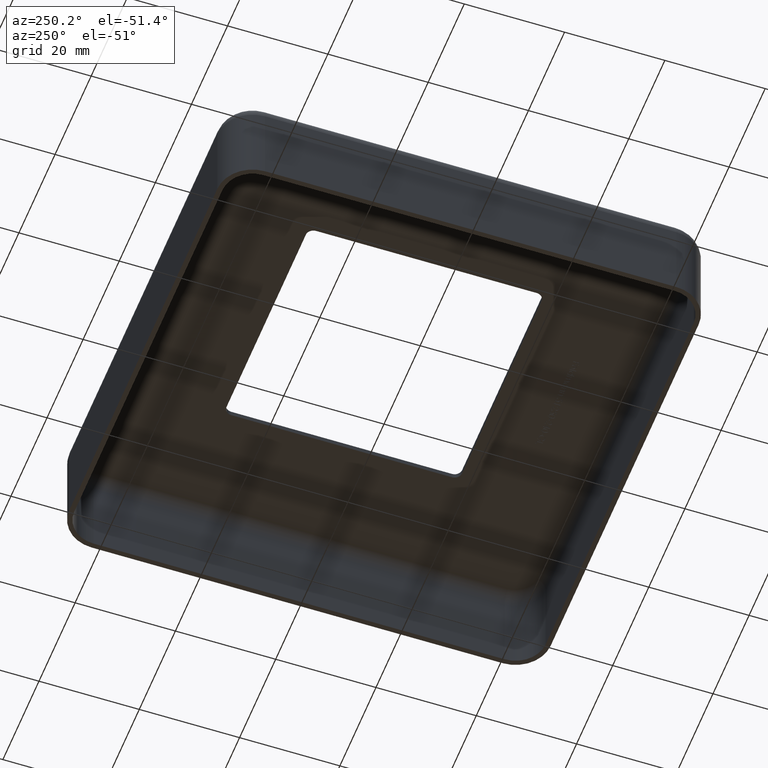
[diagram: clean part render]
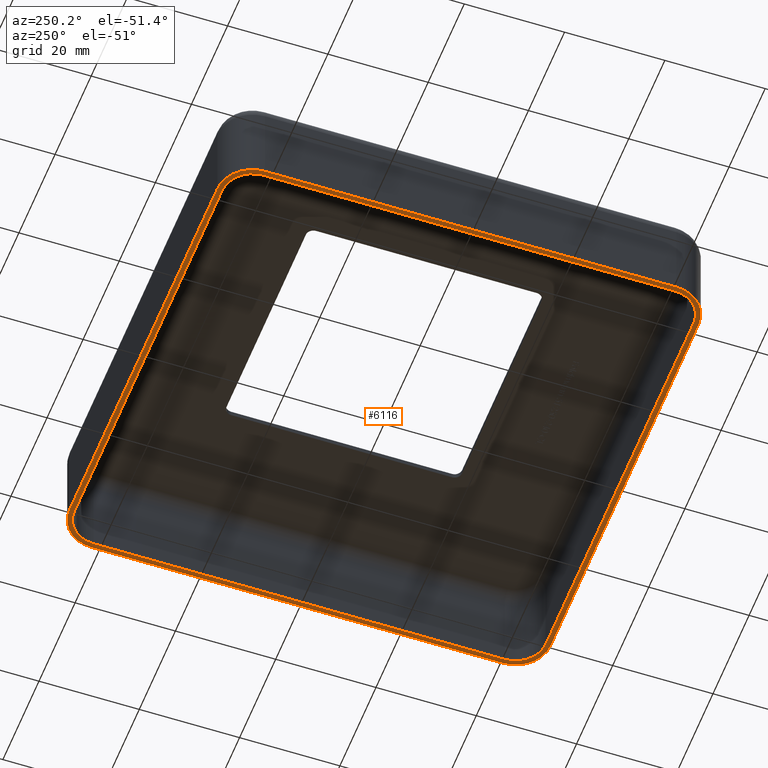
[diagram: same view with one face highlighted and labeled with its STEP entity id]
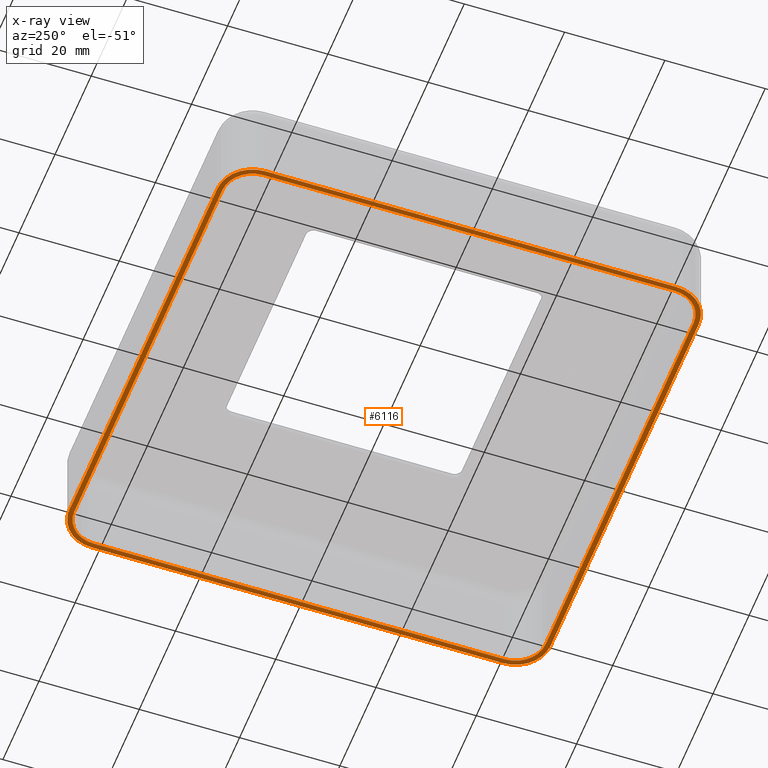
[diagram: x-ray of the same camera — body ghosted, the highlighted face saturated]
A machine part, auxiliary view. The second image highlights one B-rep face of the part: STEP entity #6116.
The next image is the same camera in x-ray: the body ghosted, the highlighted face saturated — about 0% of this face is hidden behind the body in this view.
In plain terms, the highlighted planar face has unit normal (-0, 0, 1).
Its self-contained STEP definition (entity closure, byte-faithful):
#24 = DIRECTION ( 'NONE',  ( -1.000000000000000000, -0.000000000000000000, -0.000000000000000000 ) ) ;
#246 = CARTESIAN_POINT ( 'NONE',  ( 40.99999999999999289, -47.00000000000000711, 0.000000000000000000 ) ) ;
#279 = CARTESIAN_POINT ( 'NONE',  ( 0.000000000000000000, 0.000000000000000000, 0.000000000000000000 ) ) ;
#297 = EDGE_CURVE ( 'NONE', #3028, #3944, #769, .T. ) ;
#374 = FACE_BOUND ( 'NONE', #13931, .T. ) ;
#636 = AXIS2_PLACEMENT_3D ( 'NONE', #10452, #8077, #9098 ) ;
#686 = CARTESIAN_POINT ( 'NONE',  ( 41.00000000000000000, -41.00000000000000000, 0.000000000000000000 ) ) ;
#769 = CIRCLE ( 'NONE', #1581, 6.999999999999999112 ) ;
#861 = ORIENTED_EDGE ( 'NONE', *, *, #13940, .T. ) ;
#975 = EDGE_CURVE ( 'NONE', #12836, #12763, #6354, .T. ) ;
#1036 = DIRECTION ( 'NONE',  ( 1.000000000000000000, 0.000000000000000000, 0.000000000000000000 ) ) ;
#1054 = ORIENTED_EDGE ( 'NONE', *, *, #13642, .F. ) ;
#1098 = EDGE_CURVE ( 'NONE', #3437, #12751, #11755, .T. ) ;
#1158 = EDGE_LOOP ( 'NONE', ( #13349, #12544, #10178, #3234, #3937, #9691, #12811, #7238 ) ) ;
#1233 = DIRECTION ( 'NONE',  ( 0.000000000000000000, -0.000000000000000000, -1.000000000000000000 ) ) ;
#1245 = VERTEX_POINT ( 'NONE', #8517 ) ;
#1272 = DIRECTION ( 'NONE',  ( 1.000000000000000000, 0.000000000000000000, 0.000000000000000000 ) ) ;
#1298 = LINE ( 'NONE', #2765, #14072 ) ;
#1443 = CARTESIAN_POINT ( 'NONE',  ( -48.00000000000000000, -41.00000000000000000, 0.000000000000000000 ) ) ;
#1581 = AXIS2_PLACEMENT_3D ( 'NONE', #5724, #1233, #9226 ) ;
#1825 = AXIS2_PLACEMENT_3D ( 'NONE', #8187, #7186, #1272 ) ;
#1844 = EDGE_CURVE ( 'NONE', #12836, #12751, #9067, .T. ) ;
#1885 = CARTESIAN_POINT ( 'NONE',  ( -48.00000000000001421, 46.99999999999999289, 0.000000000000000000 ) ) ;
#1918 = AXIS2_PLACEMENT_3D ( 'NONE', #11428, #8056, #13748 ) ;
#1997 = FACE_OUTER_BOUND ( 'NONE', #1158, .T. ) ;
#2211 = CARTESIAN_POINT ( 'NONE',  ( -41.00000000000001421, 46.99999999999999289, 0.000000000000000000 ) ) ;
#2219 = CARTESIAN_POINT ( 'NONE',  ( 48.00000000000000000, -41.00000000000000000, 0.000000000000000000 ) ) ;
#2314 = CIRCLE ( 'NONE', #14889, 6.999999999999999112 ) ;
#2485 = CARTESIAN_POINT ( 'NONE',  ( -41.00000000000000000, -48.00000000000000711, 0.000000000000000000 ) ) ;
#2619 = VERTEX_POINT ( 'NONE', #2485 ) ;
#2765 = CARTESIAN_POINT ( 'NONE',  ( 47.99999999999998579, 47.99999999999999289, 0.000000000000000000 ) ) ;
#2889 = ORIENTED_EDGE ( 'NONE', *, *, #1098, .T. ) ;
#2993 = EDGE_CURVE ( 'NONE', #3437, #11569, #14807, .T. ) ;
#2996 = LINE ( 'NONE', #5820, #5669 ) ;
#3018 = AXIS2_PLACEMENT_3D ( 'NONE', #279, #10525, #7055 ) ;
#3028 = VERTEX_POINT ( 'NONE', #6738 ) ;
#3057 = ORIENTED_EDGE ( 'NONE', *, *, #975, .T. ) ;
#3087 = CIRCLE ( 'NONE', #636, 6.999999999999999112 ) ;
#3234 = ORIENTED_EDGE ( 'NONE', *, *, #11686, .T. ) ;
#3357 = DIRECTION ( 'NONE',  ( 1.000000000000000000, 0.000000000000000000, 0.000000000000000000 ) ) ;
#3421 = PLANE ( 'NONE',  #3018 ) ;
#3437 = VERTEX_POINT ( 'NONE', #10706 ) ;
#3507 = ORIENTED_EDGE ( 'NONE', *, *, #1844, .F. ) ;
#3898 = VERTEX_POINT ( 'NONE', #13629 ) ;
#3908 = DIRECTION ( 'NONE',  ( -1.445602896647339163E-16, 1.000000000000000000, -0.000000000000000000 ) ) ;
#3937 = ORIENTED_EDGE ( 'NONE', *, *, #4301, .F. ) ;
#3944 = VERTEX_POINT ( 'NONE', #7950 ) ;
#4163 = DIRECTION ( 'NONE',  ( 1.000000000000000000, 0.000000000000000000, 0.000000000000000000 ) ) ;
#4301 = EDGE_CURVE ( 'NONE', #13980, #11921, #1298, .T. ) ;
#4543 = EDGE_CURVE ( 'NONE', #13980, #13059, #12785, .T. ) ;
#4611 = ORIENTED_EDGE ( 'NONE', *, *, #2993, .F. ) ;
#5276 = CARTESIAN_POINT ( 'NONE',  ( -48.00000000000001421, 47.99999999999999289, 0.000000000000000000 ) ) ;
#5516 = DIRECTION ( 'NONE',  ( 0.000000000000000000, -0.000000000000000000, -1.000000000000000000 ) ) ;
#5669 = VECTOR ( 'NONE', #1036, 1000.000000000000000 ) ;
#5720 = CARTESIAN_POINT ( 'NONE',  ( 46.99999999999998579, 47.99999999999999289, 0.000000000000000000 ) ) ;
#5724 = CARTESIAN_POINT ( 'NONE',  ( -41.00000000000001421, 40.99999999999999289, 0.000000000000000000 ) ) ;
#5751 = CARTESIAN_POINT ( 'NONE',  ( 47.99999999999998579, 40.99999999999999289, 0.000000000000000000 ) ) ;
#5815 = VECTOR ( 'NONE', #12617, 1000.000000000000000 ) ;
#5820 = CARTESIAN_POINT ( 'NONE',  ( -48.00000000000000000, -48.00000000000000711, 0.000000000000000000 ) ) ;
#6003 = CARTESIAN_POINT ( 'NONE',  ( 47.00000000000000000, -41.00000000000000000, 0.000000000000000000 ) ) ;
#6017 = CARTESIAN_POINT ( 'NONE',  ( -47.00000000000000000, -41.00000000000000000, 0.000000000000000000 ) ) ;
#6092 = EDGE_CURVE ( 'NONE', #13486, #3944, #10083, .T. ) ;
#6116 = ADVANCED_FACE ( 'NONE', ( #1997, #374 ), #3421, .F. ) ;
#6157 = CARTESIAN_POINT ( 'NONE',  ( 41.00000000000000000, -41.00000000000000000, 0.000000000000000000 ) ) ;
#6354 = LINE ( 'NONE', #5720, #5815 ) ;
#6738 = CARTESIAN_POINT ( 'NONE',  ( -48.00000000000001421, 40.99999999999999289, 0.000000000000000000 ) ) ;
#6798 = CARTESIAN_POINT ( 'NONE',  ( 40.99999999999997868, 47.99999999999999289, 0.000000000000000000 ) ) ;
#6962 = DIRECTION ( 'NONE',  ( 1.000000000000000000, 0.000000000000000000, 0.000000000000000000 ) ) ;
#6971 = CARTESIAN_POINT ( 'NONE',  ( 46.99999999999998579, 40.99999999999999289, 0.000000000000000000 ) ) ;
#6972 = CIRCLE ( 'NONE', #1918, 5.999999999999998224 ) ;
#7025 = EDGE_CURVE ( 'NONE', #3028, #8197, #11139, .T. ) ;
#7055 = DIRECTION ( 'NONE',  ( 1.000000000000000000, 0.000000000000000000, 0.000000000000000000 ) ) ;
#7121 = VECTOR ( 'NONE', #8125, 1000.000000000000000 ) ;
#7186 = DIRECTION ( 'NONE',  ( 0.000000000000000000, -0.000000000000000000, -1.000000000000000000 ) ) ;
#7238 = ORIENTED_EDGE ( 'NONE', *, *, #7640, .T. ) ;
#7640 = EDGE_CURVE ( 'NONE', #2619, #8197, #3087, .T. ) ;
#7926 = CARTESIAN_POINT ( 'NONE',  ( -47.00000000000001421, 47.99999999999999289, 0.000000000000000000 ) ) ;
#7950 = CARTESIAN_POINT ( 'NONE',  ( -41.00000000000001421, 47.99999999999999289, 0.000000000000000000 ) ) ;
#7954 = CARTESIAN_POINT ( 'NONE',  ( 40.99999999999999289, -48.00000000000000711, 0.000000000000000000 ) ) ;
#8041 = VERTEX_POINT ( 'NONE', #2211 ) ;
#8056 = DIRECTION ( 'NONE',  ( 0.000000000000000000, -0.000000000000000000, -1.000000000000000000 ) ) ;
#8077 = DIRECTION ( 'NONE',  ( 0.000000000000000000, -0.000000000000000000, -1.000000000000000000 ) ) ;
#8125 = DIRECTION ( 'NONE',  ( 1.445602896647339163E-16, -1.000000000000000000, 0.000000000000000000 ) ) ;
#8187 = CARTESIAN_POINT ( 'NONE',  ( 40.99999999999997868, 40.99999999999999289, 0.000000000000000000 ) ) ;
#8197 = VERTEX_POINT ( 'NONE', #1443 ) ;
#8517 = CARTESIAN_POINT ( 'NONE',  ( 40.99999999999997868, 46.99999999999999289, 0.000000000000000000 ) ) ;
#8665 = CARTESIAN_POINT ( 'NONE',  ( -48.00000000000000000, -47.00000000000000711, 0.000000000000000000 ) ) ;
#8689 = VECTOR ( 'NONE', #11027, 1000.000000000000000 ) ;
#8953 = CARTESIAN_POINT ( 'NONE',  ( -41.00000000000000000, -41.00000000000000711, 0.000000000000000000 ) ) ;
#9067 = CIRCLE ( 'NONE', #12733, 5.999999999999998224 ) ;
#9098 = DIRECTION ( 'NONE',  ( 1.000000000000000000, 0.000000000000000000, 0.000000000000000000 ) ) ;
#9226 = DIRECTION ( 'NONE',  ( 1.000000000000000000, 0.000000000000000000, 0.000000000000000000 ) ) ;
#9484 = EDGE_CURVE ( 'NONE', #1245, #8041, #13492, .T. ) ;
#9691 = ORIENTED_EDGE ( 'NONE', *, *, #4543, .T. ) ;
#9707 = VECTOR ( 'NONE', #13188, 1000.000000000000000 ) ;
#9910 = DIRECTION ( 'NONE',  ( -1.000000000000000000, 0.000000000000000000, 0.000000000000000000 ) ) ;
#10061 = CARTESIAN_POINT ( 'NONE',  ( 40.99999999999997868, 40.99999999999999289, 0.000000000000000000 ) ) ;
#10083 = LINE ( 'NONE', #13485, #13484 ) ;
#10105 = ORIENTED_EDGE ( 'NONE', *, *, #12225, .F. ) ;
#10178 = ORIENTED_EDGE ( 'NONE', *, *, #6092, .F. ) ;
#10255 = VECTOR ( 'NONE', #9910, 1000.000000000000000 ) ;
#10351 = AXIS2_PLACEMENT_3D ( 'NONE', #686, #13274, #4163 ) ;
#10452 = CARTESIAN_POINT ( 'NONE',  ( -41.00000000000000000, -41.00000000000000711, 0.000000000000000000 ) ) ;
#10525 = DIRECTION ( 'NONE',  ( -0.000000000000000000, 0.000000000000000000, 1.000000000000000000 ) ) ;
#10706 = CARTESIAN_POINT ( 'NONE',  ( -41.00000000000000000, -47.00000000000000711, 0.000000000000000000 ) ) ;
#11027 = DIRECTION ( 'NONE',  ( 1.000000000000000000, -0.000000000000000000, 0.000000000000000000 ) ) ;
#11139 = LINE ( 'NONE', #5276, #9707 ) ;
#11379 = ORIENTED_EDGE ( 'NONE', *, *, #9484, .T. ) ;
#11428 = CARTESIAN_POINT ( 'NONE',  ( -41.00000000000001421, 40.99999999999999289, 0.000000000000000000 ) ) ;
#11569 = VERTEX_POINT ( 'NONE', #6017 ) ;
#11686 = EDGE_CURVE ( 'NONE', #13486, #11921, #2314, .T. ) ;
#11755 = LINE ( 'NONE', #8665, #8689 ) ;
#11921 = VERTEX_POINT ( 'NONE', #5751 ) ;
#12225 = EDGE_CURVE ( 'NONE', #3898, #8041, #6972, .T. ) ;
#12300 = DIRECTION ( 'NONE',  ( 1.000000000000000000, 0.000000000000000000, 0.000000000000000000 ) ) ;
#12544 = ORIENTED_EDGE ( 'NONE', *, *, #297, .T. ) ;
#12617 = DIRECTION ( 'NONE',  ( -1.445602896647339163E-16, 1.000000000000000000, -0.000000000000000000 ) ) ;
#12727 = DIRECTION ( 'NONE',  ( 0.000000000000000000, -0.000000000000000000, -1.000000000000000000 ) ) ;
#12733 = AXIS2_PLACEMENT_3D ( 'NONE', #6157, #12727, #6962 ) ;
#12751 = VERTEX_POINT ( 'NONE', #246 ) ;
#12763 = VERTEX_POINT ( 'NONE', #6971 ) ;
#12785 = CIRCLE ( 'NONE', #10351, 6.999999999999999112 ) ;
#12811 = ORIENTED_EDGE ( 'NONE', *, *, #13605, .F. ) ;
#12836 = VERTEX_POINT ( 'NONE', #6003 ) ;
#13059 = VERTEX_POINT ( 'NONE', #7954 ) ;
#13188 = DIRECTION ( 'NONE',  ( 1.445602896647339163E-16, -1.000000000000000000, 0.000000000000000000 ) ) ;
#13274 = DIRECTION ( 'NONE',  ( 0.000000000000000000, -0.000000000000000000, -1.000000000000000000 ) ) ;
#13349 = ORIENTED_EDGE ( 'NONE', *, *, #7025, .F. ) ;
#13484 = VECTOR ( 'NONE', #24, 1000.000000000000000 ) ;
#13485 = CARTESIAN_POINT ( 'NONE',  ( -48.00000000000001421, 47.99999999999999289, 0.000000000000000000 ) ) ;
#13486 = VERTEX_POINT ( 'NONE', #6798 ) ;
#13492 = LINE ( 'NONE', #1885, #10255 ) ;
#13517 = AXIS2_PLACEMENT_3D ( 'NONE', #8953, #5516, #3357 ) ;
#13605 = EDGE_CURVE ( 'NONE', #2619, #13059, #2996, .T. ) ;
#13629 = CARTESIAN_POINT ( 'NONE',  ( -47.00000000000001421, 40.99999999999999289, 0.000000000000000000 ) ) ;
#13642 = EDGE_CURVE ( 'NONE', #1245, #12763, #13960, .T. ) ;
#13748 = DIRECTION ( 'NONE',  ( 1.000000000000000000, 0.000000000000000000, 0.000000000000000000 ) ) ;
#13931 = EDGE_LOOP ( 'NONE', ( #10105, #861, #4611, #2889, #3507, #3057, #1054, #11379 ) ) ;
#13940 = EDGE_CURVE ( 'NONE', #3898, #11569, #14321, .T. ) ;
#13960 = CIRCLE ( 'NONE', #1825, 5.999999999999998224 ) ;
#13980 = VERTEX_POINT ( 'NONE', #2219 ) ;
#14072 = VECTOR ( 'NONE', #3908, 1000.000000000000000 ) ;
#14321 = LINE ( 'NONE', #7926, #7121 ) ;
#14630 = DIRECTION ( 'NONE',  ( 0.000000000000000000, -0.000000000000000000, -1.000000000000000000 ) ) ;
#14807 = CIRCLE ( 'NONE', #13517, 5.999999999999998224 ) ;
#14889 = AXIS2_PLACEMENT_3D ( 'NONE', #10061, #14630, #12300 ) ;